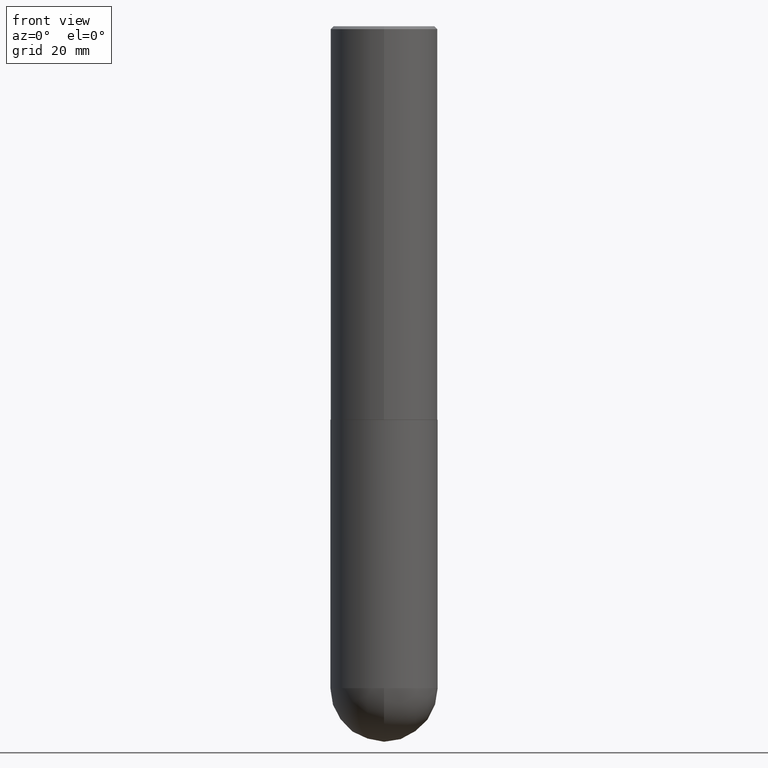
[diagram: clean part render]
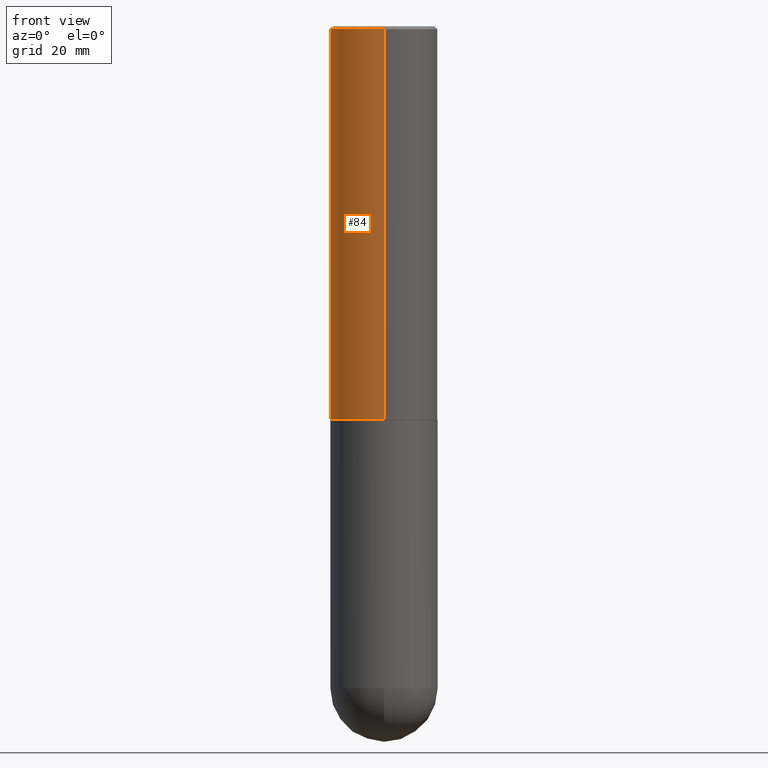
[diagram: same view with one face highlighted and labeled with its STEP entity id]
A machine part, front view. The second image highlights one B-rep face of the part: STEP entity #84.
In plain terms, the highlighted cylindrical surface (partial cylindrical patch) has radius 9.525 mm, axis along (-0, 0, 1).
Its self-contained STEP definition (entity closure, byte-faithful):
#4 = VERTEX_POINT ( 'NONE', #203 ) ;
#7 = CARTESIAN_POINT ( 'NONE',  ( 2.664535259100411985E-15, 0.3749999999999907851, -2.749000000000000998 ) ) ;
#38 = ORIENTED_EDGE ( 'NONE', *, *, #382, .T. ) ;
#43 = FACE_OUTER_BOUND ( 'NONE', #356, .T. ) ;
#47 = CIRCLE ( 'NONE', #394, 0.3749999999999999445 ) ;
#53 = LINE ( 'NONE', #139, #89 ) ;
#54 = VERTEX_POINT ( 'NONE', #79 ) ;
#65 = DIRECTION ( 'NONE',  ( -2.445212074138828297E-29, 3.491848993745739476E-15, 1.000000000000000000 ) ) ;
#79 = CARTESIAN_POINT ( 'NONE',  ( -2.618611004132285330E-15, -0.3750000000000100475, -2.748999999999999222 ) ) ;
#81 = DIRECTION ( 'NONE',  ( -6.982962677686265922E-15, -1.000000000000000000, 2.913971193241877216E-15 ) ) ;
#82 = CYLINDRICAL_SURFACE ( 'NONE', #240, 0.3750000000000002220 ) ;
#84 = ADVANCED_FACE ( 'NONE', ( #43 ), #82, .T. ) ;
#89 = VECTOR ( 'NONE', #114, 39.37007874015748143 ) ;
#101 = CARTESIAN_POINT ( 'NONE',  ( 6.721887991807639758E-29, -9.599092883807038608E-15, -2.749000000000000110 ) ) ;
#114 = DIRECTION ( 'NONE',  ( -2.445212074138828297E-29, 3.491848993745739476E-15, 1.000000000000000000 ) ) ;
#118 = VECTOR ( 'NONE', #65, 39.37007874015748143 ) ;
#139 = CARTESIAN_POINT ( 'NONE',  ( -2.618611004132351594E-15, -0.3750000000000002220, 1.309443372654653240E-15 ) ) ;
#143 = DIRECTION ( 'NONE',  ( -6.982962677686266711E-15, -1.000000000000000000, 3.494488891895537218E-15 ) ) ;
#168 = EDGE_CURVE ( 'NONE', #54, #398, #53, .T. ) ;
#170 = EDGE_CURVE ( 'NONE', #392, #4, #288, .T. ) ;
#192 = ORIENTED_EDGE ( 'NONE', *, *, #406, .F. ) ;
#194 = DIRECTION ( 'NONE',  ( -2.445212074138828297E-29, 3.491848993745739476E-15, 1.000000000000000000 ) ) ;
#198 = CARTESIAN_POINT ( 'NONE',  ( -2.572686749164323153E-15, -0.3750000000000000555, -0.01999999999999877570 ) ) ;
#200 = CARTESIAN_POINT ( 'NONE',  ( 0.000000000000000000, 0.000000000000000000, 0.000000000000000000 ) ) ;
#203 = CARTESIAN_POINT ( 'NONE',  ( 2.618611004132350016E-15, 0.3749999999999998890, -0.02000000000000139513 ) ) ;
#232 = DIRECTION ( 'NONE',  ( -2.445212074138828297E-29, 3.491848993745739476E-15, 1.000000000000000000 ) ) ;
#240 = AXIS2_PLACEMENT_3D ( 'NONE', #200, #232, #334 ) ;
#276 = DIRECTION ( 'NONE',  ( -2.445212074138828297E-29, 3.491848993745739476E-15, 1.000000000000000000 ) ) ;
#288 = LINE ( 'NONE', #387, #118 ) ;
#334 = DIRECTION ( 'NONE',  ( -6.982962677686266711E-15, -1.000000000000000000, 3.491848993745739870E-15 ) ) ;
#339 = CARTESIAN_POINT ( 'NONE',  ( 4.890424148277678035E-31, -6.983697987491508978E-17, -0.02000000000000008715 ) ) ;
#343 = ORIENTED_EDGE ( 'NONE', *, *, #168, .T. ) ;
#356 = EDGE_LOOP ( 'NONE', ( #407, #38, #343, #192 ) ) ;
#358 = AXIS2_PLACEMENT_3D ( 'NONE', #101, #194, #81 ) ;
#378 = CIRCLE ( 'NONE', #358, 0.3750000000000004441 ) ;
#382 = EDGE_CURVE ( 'NONE', #392, #54, #378, .T. ) ;
#387 = CARTESIAN_POINT ( 'NONE',  ( 2.664535259100376880E-15, 0.3750000000000002220, -1.309443372654653240E-15 ) ) ;
#392 = VERTEX_POINT ( 'NONE', #7 ) ;
#394 = AXIS2_PLACEMENT_3D ( 'NONE', #339, #276, #143 ) ;
#398 = VERTEX_POINT ( 'NONE', #198 ) ;
#406 = EDGE_CURVE ( 'NONE', #4, #398, #47, .T. ) ;
#407 = ORIENTED_EDGE ( 'NONE', *, *, #170, .F. ) ;